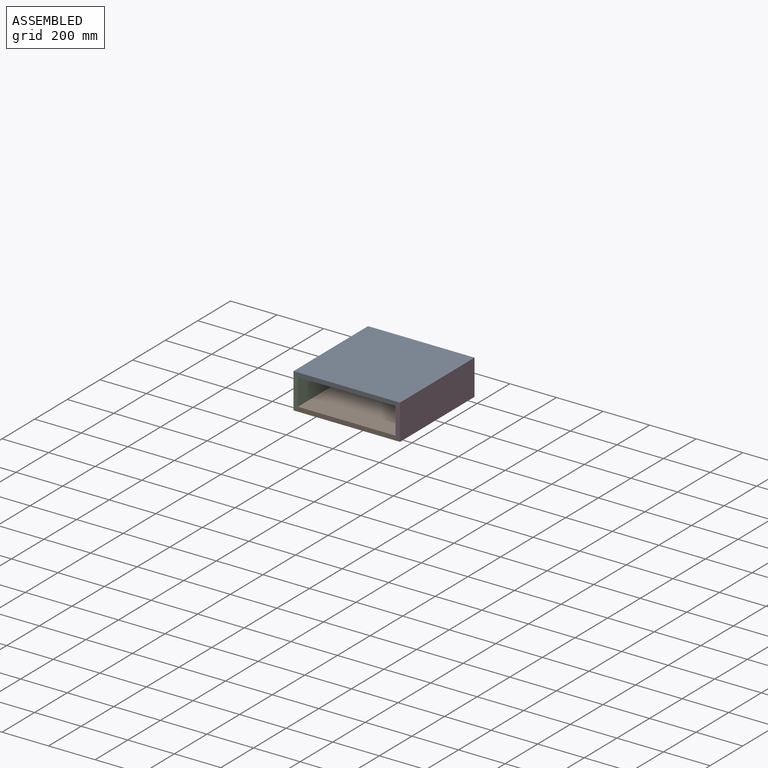
[diagram: assembled view]
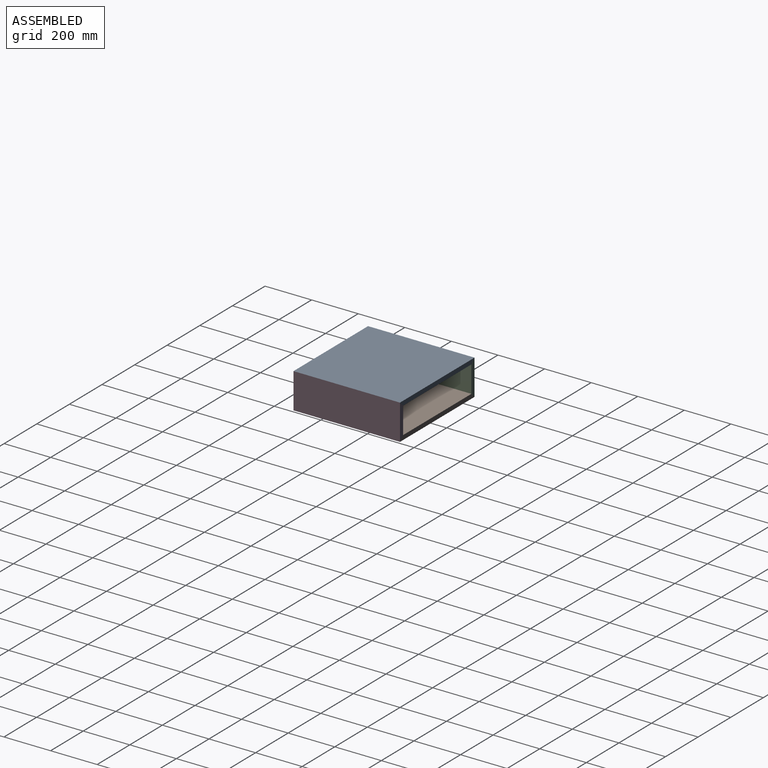
[diagram: assembled view, second angle]
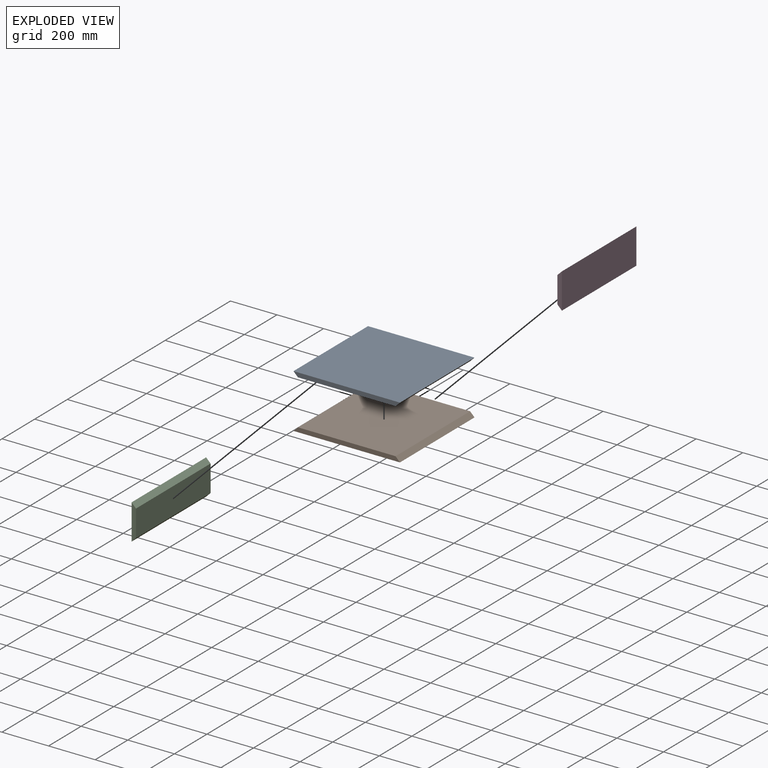
[diagram: exploded view]
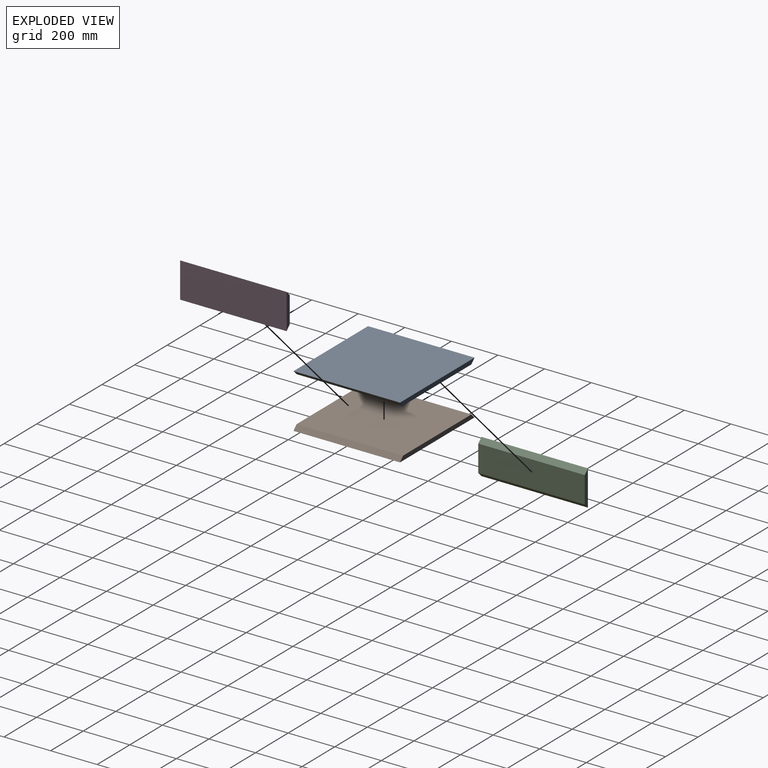
[diagram: exploded view, second angle]
ASSEMBLY  parts=4 mates=3
PART A: 6 faces, bbox 457.2x457.2x19.1 mm
  f0: plane 457.2x19.05mm, normal (-0.71,0,0.71), area 12317.3mm2, adj f1,f3,f4,f5
  f1: plane 457.2x457.2mm, normal (0,0,-1), area 209031.8mm2, adj f0,f2,f4,f5
  f2: plane 457.2x19.05mm, normal (0.71,0,0.71), area 12317.3mm2, adj f1,f3,f4,f5
  f3: plane 457.2x419.1mm, normal (0,0,1), area 191612.5mm2, adj f0,f2,f4,f5
  f4: plane 457.2x19.05mm, normal (0,-1,0), area 8346.8mm2, adj f0,f1,f2,f3
  f5: plane 457.2x19.05mm, normal (0,1,0), area 8346.8mm2, adj f0,f1,f2,f3
PART B: same geometry as A
PART C: 6 faces, bbox 19.1x457.2x152.4 mm
  f0: plane 457.2x19.05mm, normal (0.71,0,0.71), area 12317.3mm2, adj f1,f3,f4,f5
  f1: plane 457.2x152.4mm, normal (-1,0,0), area 69677.3mm2, adj f0,f2,f4,f5
  f2: plane 457.2x19.05mm, normal (0.71,0,-0.71), area 12317.3mm2, adj f1,f3,f4,f5
  f3: plane 457.2x114.3mm, normal (1,0,0), area 52258mm2, adj f0,f2,f4,f5
  f4: plane 152.4x19.05mm, normal (0,-1,0), area 2540.3mm2, adj f0,f1,f2,f3
  f5: plane 152.4x19.05mm, normal (0,1,0), area 2540.3mm2, adj f0,f1,f2,f3
PART D: same geometry as C
PLACE A rot(axis=(0,1,0),180deg) t=(0,0,133.35)mm
PLACE B at identity
PLACE C t=(-219.08,0,66.68)mm
PLACE D rot(axis=(0,-1,0),180deg) t=(219.07,0,66.67)mm
MATE fastened D.f0 <-> B.f2  axis (-0.71,0,-0.71) through (209.55,-228.6,9.52)mm
MATE fastened A.f2 <-> C.f0  axis (-0.71,0,-0.71) through (-209.55,-228.6,123.82)mm
MATE fastened C.f2 <-> B.f0  axis (0.71,0,-0.71) through (-209.55,-228.6,9.53)mm
